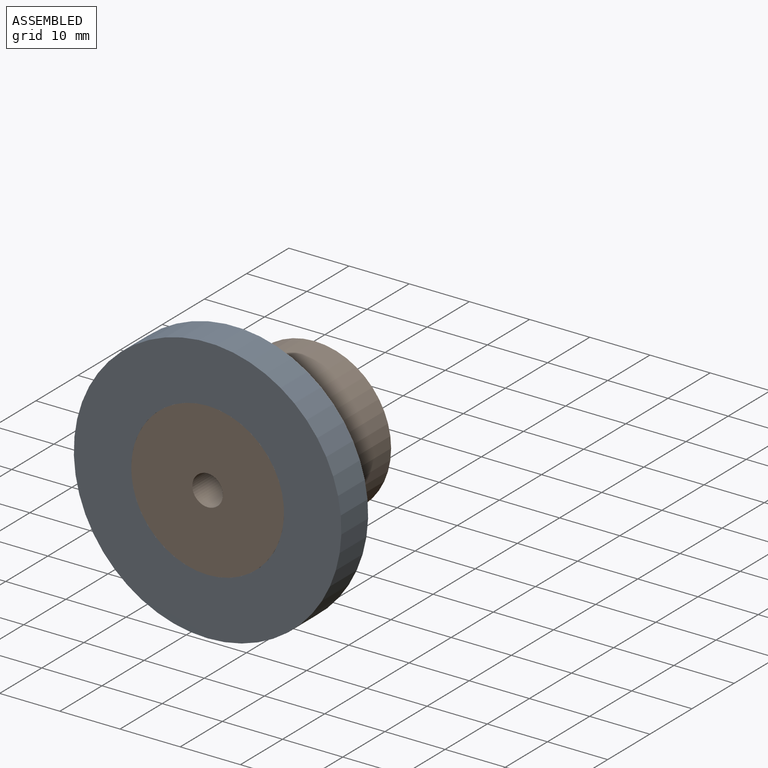
[diagram: assembled view]
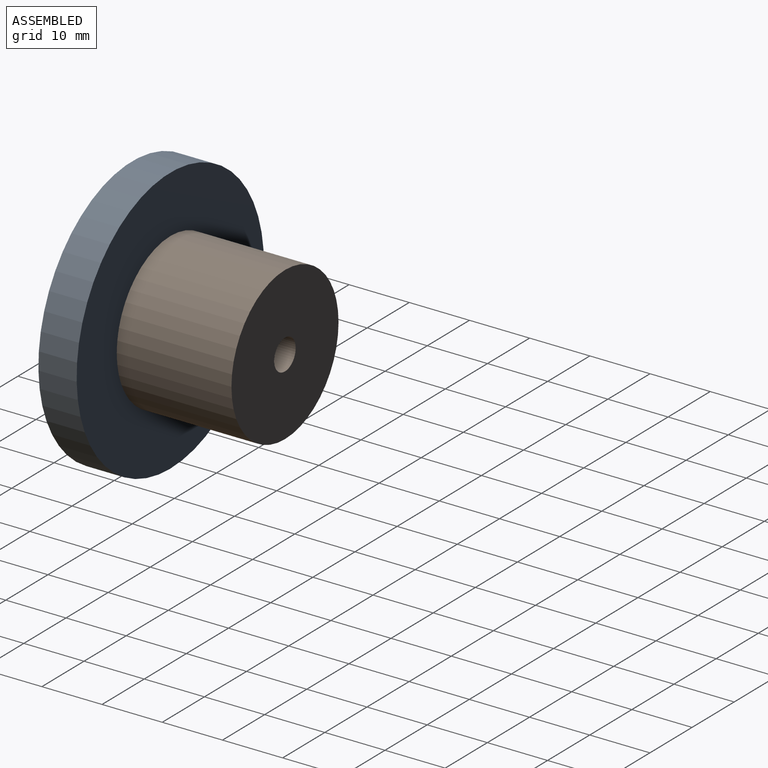
[diagram: assembled view, second angle]
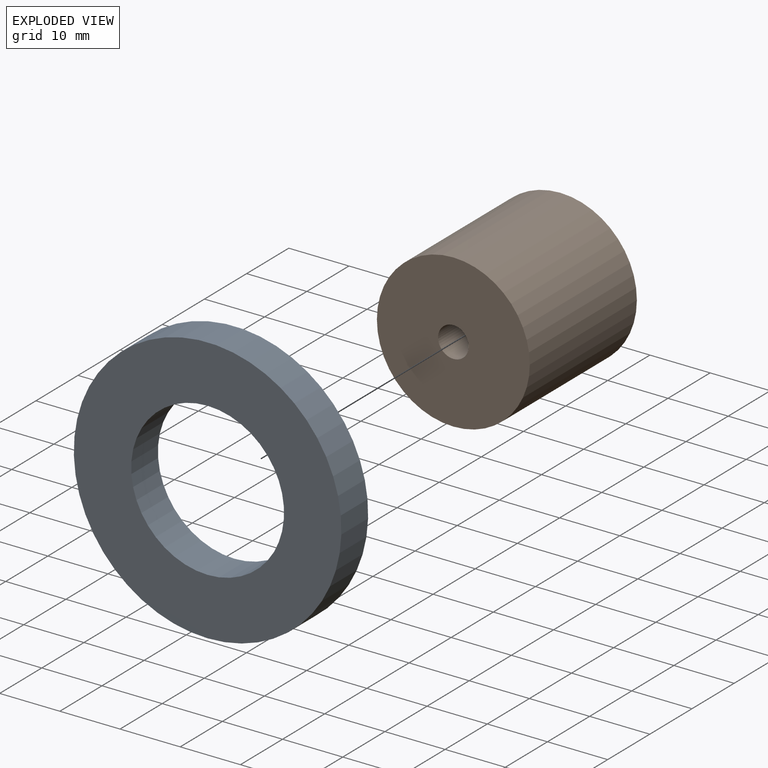
[diagram: exploded view]
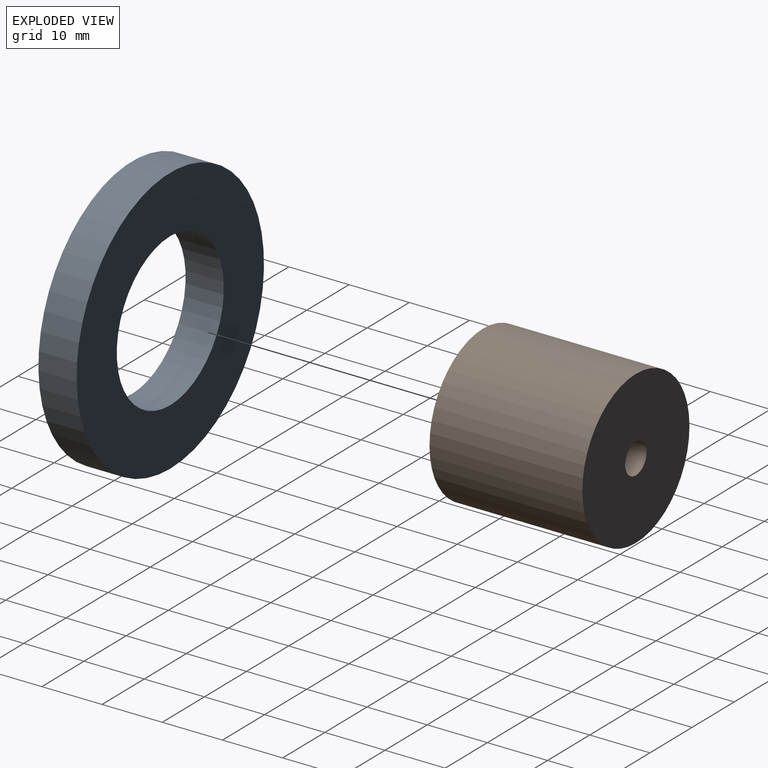
[diagram: exploded view, second angle]
ASSEMBLY  parts=2 mates=2
PART A: 4 faces, bbox 44.5x6.4x44.5 mm
  f0: cylinder r=12.7mm len=25.4mm, axis (0,1,0), area 506.7mm2, adj f2,f3
  f1: cylinder r=22.23mm len=44.45mm, axis (0,1,0), area 886.7mm2, adj f2,f3
  f2: plane 44.45x44.45mm, normal (0,-1,0), area 1045.1mm2, adj f0,f1
  f3: plane 44.45x44.45mm, normal (0,1,0), area 1045.1mm2, adj f0,f1
PART B: 4 faces, bbox 25.4x25.4x25.4 mm
  f0: cylinder r=12.7mm len=25.4mm, axis (0,1,0), area 2026.8mm2, adj f1,f2
  f1: plane 25.4x25.4mm, normal (0,-1,0), area 486.4mm2, adj f0,f3
  f2: plane 25.4x25.4mm, normal (0,1,0), area 486.4mm2, adj f0,f3
  f3: cylinder r=2.54mm len=25.4mm, axis (0,-1,0), area 405.4mm2, adj f1,f2
PLACE A t=(-35.73,-44.68,-53.11)mm
PLACE B t=(-35.73,-25.63,-53.11)mm
MATE planar A.f1 <-> B.f3  axis (0,-1,0) through (-35.73,-51.03,-53.11)mm
MATE cylindrical B.f0 <-> A.f1  axis (0,-1,0) through (-35.73,-51.03,-53.11)mm
